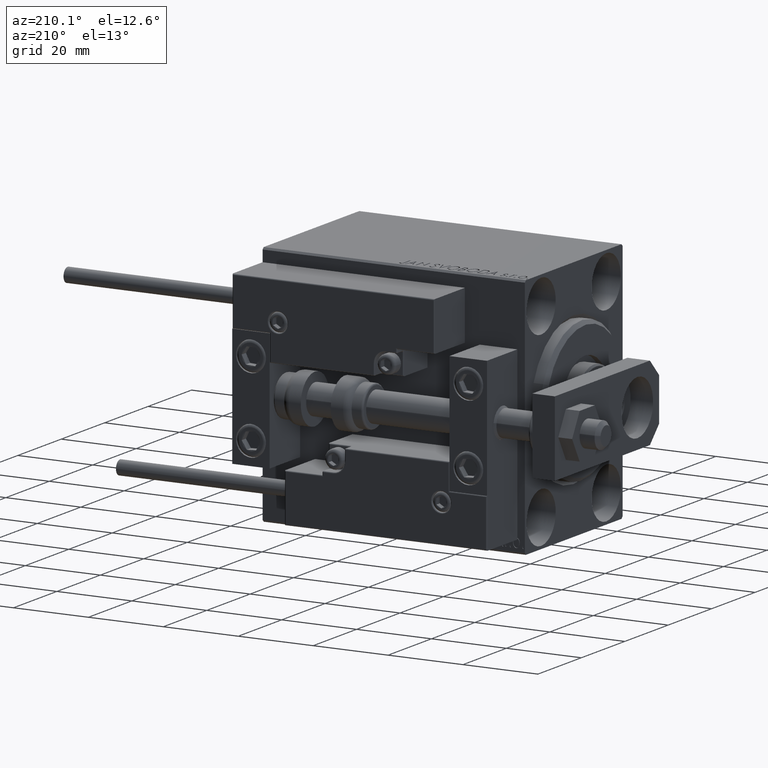
[diagram: clean part render]
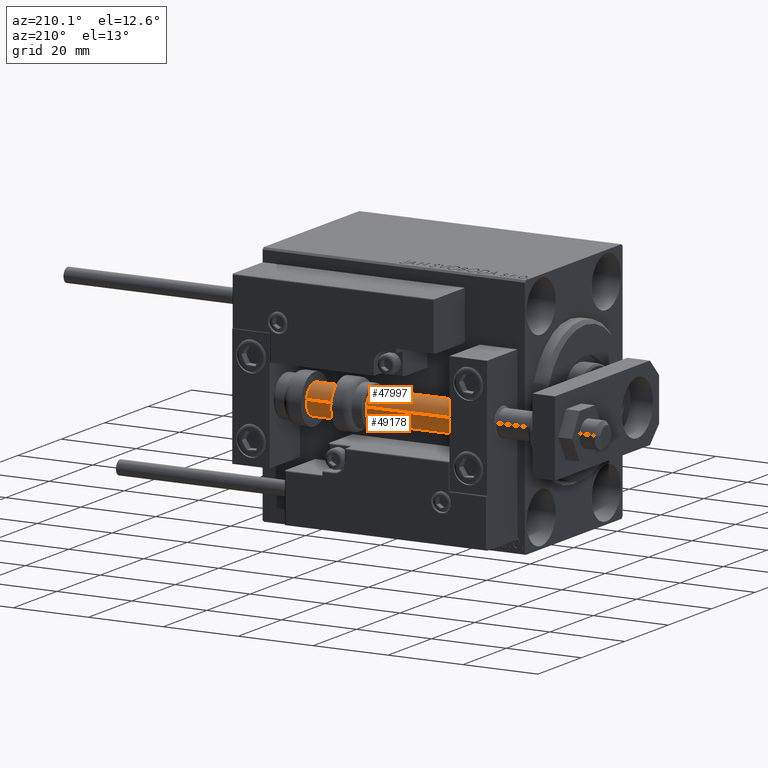
[diagram: same view with one multi-face feature highlighted, each face labeled with its STEP entity id]
A machine part, auxiliary view. The highlighted faces form ONE feature: a constant-radius fillet chain: 2 tangent blend faces with common blend radius 4 mm. The faces share edges in the B-rep.
Their STEP definitions:
[1] entity #47997 (Cylinder):
#1540 = CARTESIAN_POINT ( 'NONE',  ( -4.000000000000000000, 0.000000000000000000, 2.000000000000029310 ) ) ;
#1911 = EDGE_CURVE ( 'NONE', #15447, #3150, #30513, .T. ) ;
#3024 = CARTESIAN_POINT ( 'NONE',  ( 0.000000000000000000, 0.000000000000000000, 70.00000000000000000 ) ) ;
#3150 = VERTEX_POINT ( 'NONE', #44308 ) ;
#3245 = CARTESIAN_POINT ( 'NONE',  ( 4.000000000000000000, 4.898587196589412829E-16, 70.00000000000000000 ) ) ;
#4977 = AXIS2_PLACEMENT_3D ( 'NONE', #5624, #40759, #21158 ) ;
#5501 = ORIENTED_EDGE ( 'NONE', *, *, #27531, .T. ) ;
#5624 = CARTESIAN_POINT ( 'NONE',  ( 0.000000000000000000, 0.000000000000000000, 2.000000000000029310 ) ) ;
#10636 = DIRECTION ( 'NONE',  ( 1.000000000000000000, 0.000000000000000000, 0.000000000000000000 ) ) ;
#10904 = EDGE_CURVE ( 'NONE', #14574, #19632, #13075, .T. ) ;
#12561 = DIRECTION ( 'NONE',  ( -0.000000000000000000, -0.000000000000000000, -1.000000000000000000 ) ) ;
#13075 = LINE ( 'NONE', #47455, #26512 ) ;
#14033 = AXIS2_PLACEMENT_3D ( 'NONE', #40001, #43082, #27807 ) ;
#14475 = DIRECTION ( 'NONE',  ( 0.000000000000000000, 0.000000000000000000, 1.000000000000000000 ) ) ;
#14574 = VERTEX_POINT ( 'NONE', #33781 ) ;
#15447 = VERTEX_POINT ( 'NONE', #3245 ) ;
#18688 = EDGE_LOOP ( 'NONE', ( #45015, #49031, #5501, #42175 ) ) ;
#19632 = VERTEX_POINT ( 'NONE', #1540 ) ;
#19646 = FACE_OUTER_BOUND ( 'NONE', #18688, .T. ) ;
#21158 = DIRECTION ( 'NONE',  ( 1.000000000000000000, 0.000000000000000000, 0.000000000000000000 ) ) ;
#23024 = EDGE_CURVE ( 'NONE', #15447, #14574, #24342, .T. ) ;
#24342 = CIRCLE ( 'NONE', #43034, 4.000000000000000000 ) ;
#24767 = VECTOR ( 'NONE', #45296, 1000.000000000000000 ) ;
#26512 = VECTOR ( 'NONE', #12561, 1000.000000000000000 ) ;
#27531 = EDGE_CURVE ( 'NONE', #3150, #19632, #48045, .T. ) ;
#27807 = DIRECTION ( 'NONE',  ( -1.000000000000000000, 0.000000000000000000, 0.000000000000000000 ) ) ;
#29771 = CARTESIAN_POINT ( 'NONE',  ( 4.000000000000000000, 4.898587196589412829E-16, 70.00000000000000000 ) ) ;
#30513 = LINE ( 'NONE', #29771, #24767 ) ;
#31869 = CYLINDRICAL_SURFACE ( 'NONE', #14033, 4.000000000000000000 ) ;
#33781 = CARTESIAN_POINT ( 'NONE',  ( -4.000000000000000000, 0.000000000000000000, 70.00000000000000000 ) ) ;
#40001 = CARTESIAN_POINT ( 'NONE',  ( 0.000000000000000000, 0.000000000000000000, 70.00000000000000000 ) ) ;
#40759 = DIRECTION ( 'NONE',  ( -0.000000000000000000, -0.000000000000000000, 1.000000000000000000 ) ) ;
#42175 = ORIENTED_EDGE ( 'NONE', *, *, #10904, .F. ) ;
#43034 = AXIS2_PLACEMENT_3D ( 'NONE', #3024, #14475, #10636 ) ;
#43082 = DIRECTION ( 'NONE',  ( -0.000000000000000000, -0.000000000000000000, -1.000000000000000000 ) ) ;
#44308 = CARTESIAN_POINT ( 'NONE',  ( 4.000000000000000000, 4.898587196589412829E-16, 2.000000000000029310 ) ) ;
#45015 = ORIENTED_EDGE ( 'NONE', *, *, #23024, .F. ) ;
#45296 = DIRECTION ( 'NONE',  ( -0.000000000000000000, -0.000000000000000000, -1.000000000000000000 ) ) ;
#47455 = CARTESIAN_POINT ( 'NONE',  ( -4.000000000000000000, 0.000000000000000000, 70.00000000000000000 ) ) ;
#47997 = ADVANCED_FACE ( 'NONE', ( #19646 ), #31869, .T. ) ;
#48045 = CIRCLE ( 'NONE', #4977, 4.000000000000000000 ) ;
#49031 = ORIENTED_EDGE ( 'NONE', *, *, #1911, .T. ) ;
[2] entity #49178 (Cylinder):
#18 = AXIS2_PLACEMENT_3D ( 'NONE', #40149, #43226, #47287 ) ;
#1540 = CARTESIAN_POINT ( 'NONE',  ( -4.000000000000000000, 0.000000000000000000, 2.000000000000029310 ) ) ;
#1911 = EDGE_CURVE ( 'NONE', #15447, #3150, #30513, .T. ) ;
#2905 = DIRECTION ( 'NONE',  ( 1.000000000000000000, 0.000000000000000000, 0.000000000000000000 ) ) ;
#2977 = ORIENTED_EDGE ( 'NONE', *, *, #10904, .T. ) ;
#3150 = VERTEX_POINT ( 'NONE', #44308 ) ;
#3245 = CARTESIAN_POINT ( 'NONE',  ( 4.000000000000000000, 4.898587196589412829E-16, 70.00000000000000000 ) ) ;
#4328 = CYLINDRICAL_SURFACE ( 'NONE', #39278, 4.000000000000000000 ) ;
#6590 = AXIS2_PLACEMENT_3D ( 'NONE', #45169, #13854, #2905 ) ;
#8205 = CIRCLE ( 'NONE', #6590, 4.000000000000000000 ) ;
#8385 = DIRECTION ( 'NONE',  ( -0.000000000000000000, -0.000000000000000000, -1.000000000000000000 ) ) ;
#10904 = EDGE_CURVE ( 'NONE', #14574, #19632, #13075, .T. ) ;
#12561 = DIRECTION ( 'NONE',  ( -0.000000000000000000, -0.000000000000000000, -1.000000000000000000 ) ) ;
#12623 = ORIENTED_EDGE ( 'NONE', *, *, #42649, .T. ) ;
#13075 = LINE ( 'NONE', #47455, #26512 ) ;
#13854 = DIRECTION ( 'NONE',  ( 0.000000000000000000, 0.000000000000000000, 1.000000000000000000 ) ) ;
#14574 = VERTEX_POINT ( 'NONE', #33781 ) ;
#14709 = ORIENTED_EDGE ( 'NONE', *, *, #1911, .F. ) ;
#15447 = VERTEX_POINT ( 'NONE', #3245 ) ;
#16030 = FACE_OUTER_BOUND ( 'NONE', #27773, .T. ) ;
#19632 = VERTEX_POINT ( 'NONE', #1540 ) ;
#24767 = VECTOR ( 'NONE', #45296, 1000.000000000000000 ) ;
#26512 = VECTOR ( 'NONE', #12561, 1000.000000000000000 ) ;
#27773 = EDGE_LOOP ( 'NONE', ( #14709, #49040, #2977, #12623 ) ) ;
#29771 = CARTESIAN_POINT ( 'NONE',  ( 4.000000000000000000, 4.898587196589412829E-16, 70.00000000000000000 ) ) ;
#30513 = LINE ( 'NONE', #29771, #24767 ) ;
#32065 = DIRECTION ( 'NONE',  ( -1.000000000000000000, 0.000000000000000000, 0.000000000000000000 ) ) ;
#33781 = CARTESIAN_POINT ( 'NONE',  ( -4.000000000000000000, 0.000000000000000000, 70.00000000000000000 ) ) ;
#39278 = AXIS2_PLACEMENT_3D ( 'NONE', #47591, #8385, #32065 ) ;
#40149 = CARTESIAN_POINT ( 'NONE',  ( 0.000000000000000000, 0.000000000000000000, 2.000000000000029310 ) ) ;
#42649 = EDGE_CURVE ( 'NONE', #19632, #3150, #44717, .T. ) ;
#43226 = DIRECTION ( 'NONE',  ( -0.000000000000000000, -0.000000000000000000, 1.000000000000000000 ) ) ;
#44265 = EDGE_CURVE ( 'NONE', #14574, #15447, #8205, .T. ) ;
#44308 = CARTESIAN_POINT ( 'NONE',  ( 4.000000000000000000, 4.898587196589412829E-16, 2.000000000000029310 ) ) ;
#44717 = CIRCLE ( 'NONE', #18, 4.000000000000000000 ) ;
#45169 = CARTESIAN_POINT ( 'NONE',  ( 0.000000000000000000, 0.000000000000000000, 70.00000000000000000 ) ) ;
#45296 = DIRECTION ( 'NONE',  ( -0.000000000000000000, -0.000000000000000000, -1.000000000000000000 ) ) ;
#47287 = DIRECTION ( 'NONE',  ( 1.000000000000000000, 0.000000000000000000, 0.000000000000000000 ) ) ;
#47455 = CARTESIAN_POINT ( 'NONE',  ( -4.000000000000000000, 0.000000000000000000, 70.00000000000000000 ) ) ;
#47591 = CARTESIAN_POINT ( 'NONE',  ( 0.000000000000000000, 0.000000000000000000, 70.00000000000000000 ) ) ;
#49040 = ORIENTED_EDGE ( 'NONE', *, *, #44265, .F. ) ;
#49178 = ADVANCED_FACE ( 'NONE', ( #16030 ), #4328, .T. ) ;